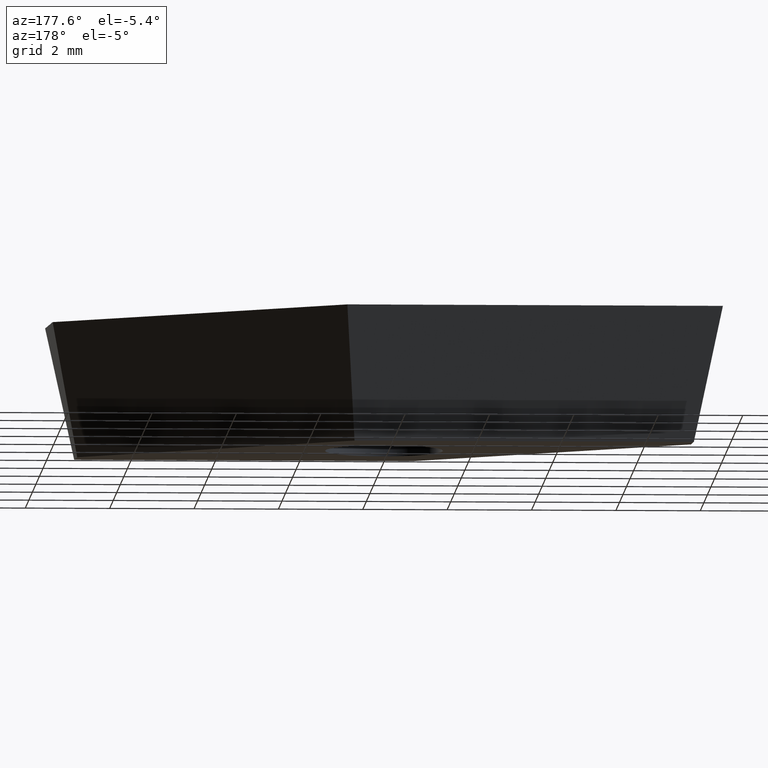
[diagram: clean part render]
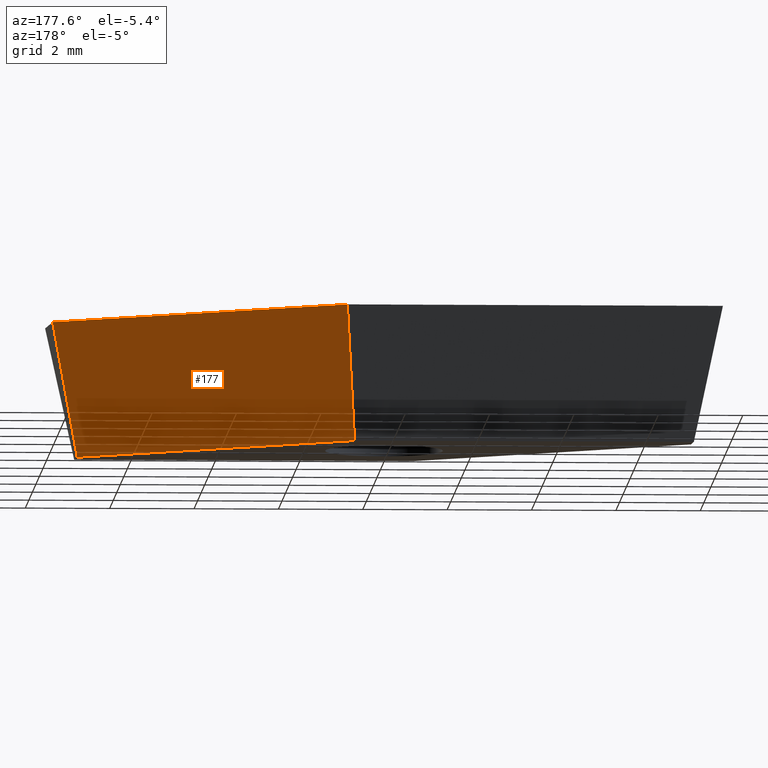
[diagram: same view with one face highlighted and labeled with its STEP entity id]
A machine part, auxiliary view. The second image highlights one B-rep face of the part: STEP entity #177.
In plain terms, the highlighted planar face has unit normal (0.563, 0.8041, -0.1908).
Its self-contained STEP definition (entity closure, byte-faithful):
#4 = LINE ( 'NONE', #281, #8 ) ;
#8 = VECTOR ( 'NONE', #266, 1000.000000000000000 ) ;
#22 = VECTOR ( 'NONE', #346, 1000.000000000000100 ) ;
#25 = LINE ( 'NONE', #283, #22 ) ;
#33 = CARTESIAN_POINT ( 'NONE',  ( 7.192231910145610900, -1.914692324122641700, -3.180000000000000200 ) ) ;
#52 = VECTOR ( 'NONE', #325, 1000.000000000000100 ) ;
#53 = LINE ( 'NONE', #316, #52 ) ;
#76 = VERTEX_POINT ( 'NONE', #33 ) ;
#94 = CARTESIAN_POINT ( 'NONE',  ( 7.788289079147451900, -1.577459403657730300, 0.0000000000000000000 ) ) ;
#111 = CARTESIAN_POINT ( 'NONE',  ( 0.8061782088420823600, 2.556870616942053400, -3.180000000000000200 ) ) ;
#119 = VECTOR ( 'NONE', #196, 1000.000000000000200 ) ;
#127 = LINE ( 'NONE', #134, #119 ) ;
#134 = CARTESIAN_POINT ( 'NONE',  ( 7.788289079147451900, -1.577459403657730300, 0.0000000000000000000 ) ) ;
#136 = FACE_OUTER_BOUND ( 'NONE', #228, .T. ) ;
#140 = EDGE_CURVE ( 'NONE', #290, #293, #127, .T. ) ;
#154 = CARTESIAN_POINT ( 'NONE',  ( 1.001073654690764100, 3.174999999999999800, 0.0000000000000000000 ) ) ;
#177 = ADVANCED_FACE ( 'NONE', ( #136 ), #189, .T. ) ;
#188 = ORIENTED_EDGE ( 'NONE', *, *, #140, .T. ) ;
#189 = PLANE ( 'NONE',  #339 ) ;
#190 = ORIENTED_EDGE ( 'NONE', *, *, #334, .F. ) ;
#191 = ORIENTED_EDGE ( 'NONE', *, *, #351, .F. ) ;
#193 = ORIENTED_EDGE ( 'NONE', *, *, #203, .T. ) ;
#196 = DIRECTION ( 'NONE',  ( 0.8191520442889951300, -0.5735764363510413900, -0.0000000000000000000 ) ) ;
#203 = EDGE_CURVE ( 'NONE', #315, #290, #53, .T. ) ;
#228 = EDGE_LOOP ( 'NONE', ( #188, #190, #191, #193 ) ) ;
#266 = DIRECTION ( 'NONE',  ( 0.8191520442889951300, -0.5735764363510413900, 0.0000000000000000000 ) ) ;
#281 = CARTESIAN_POINT ( 'NONE',  ( 7.433744630409207400, -2.083801351424742400, -3.180000000000000200 ) ) ;
#283 = CARTESIAN_POINT ( 'NONE',  ( 7.788289079147451900, -1.577459403657730300, 0.0000000000000000000 ) ) ;
#290 = VERTEX_POINT ( 'NONE', #154 ) ;
#293 = VERTEX_POINT ( 'NONE', #328 ) ;
#315 = VERTEX_POINT ( 'NONE', #111 ) ;
#316 = CARTESIAN_POINT ( 'NONE',  ( 1.001073654690764100, 3.174999999999999800, 0.0000000000000000000 ) ) ;
#325 = DIRECTION ( 'NONE',  ( 0.06005326349153968000, 0.1904646183547176200, 0.9798555172570124800 ) ) ;
#328 = CARTESIAN_POINT ( 'NONE',  ( 7.788289079147451900, -1.577459403657730300, 0.0000000000000000000 ) ) ;
#334 = EDGE_CURVE ( 'NONE', #76, #293, #25, .T. ) ;
#339 = AXIS2_PLACEMENT_3D ( 'NONE', #94, #343, #340 ) ;
#340 = DIRECTION ( 'NONE',  ( 0.8191520442889951300, -0.5735764363510413900, 0.0000000000000000000 ) ) ;
#343 = DIRECTION ( 'NONE',  ( 0.5630382217072210600, 0.8041019140508023400, -0.1908089953765452800 ) ) ;
#346 = DIRECTION ( 'NONE',  ( 0.1832382521941805500, 0.1036712150141736300, 0.9775868360970839700 ) ) ;
#351 = EDGE_CURVE ( 'NONE', #315, #76, #4, .T. ) ;